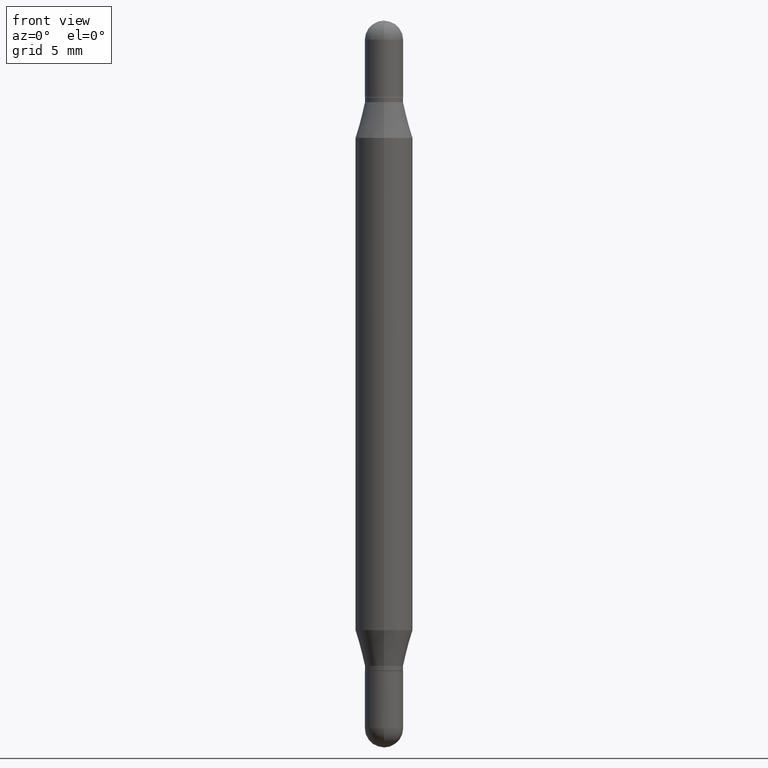
[diagram: clean part render]
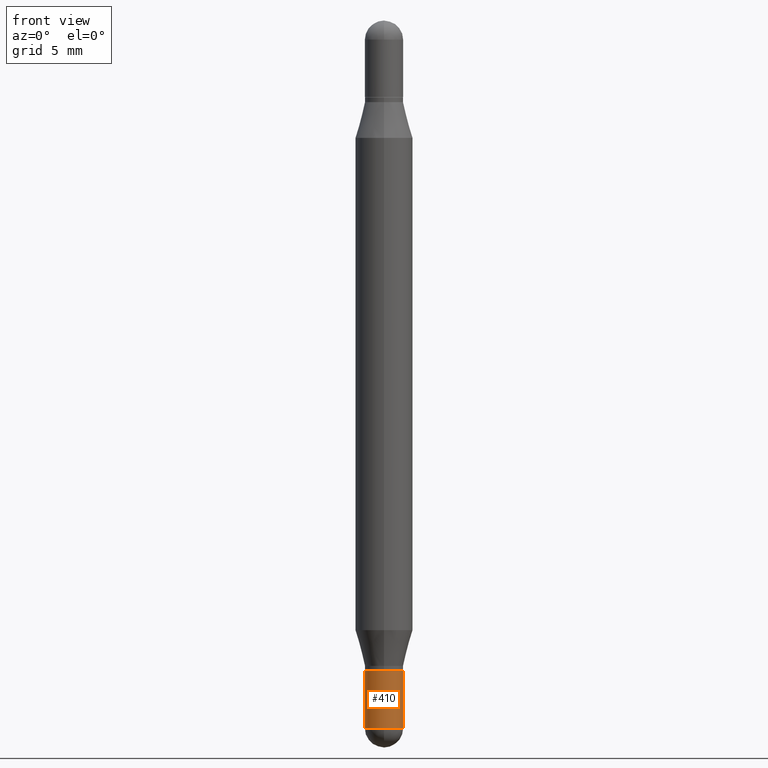
[diagram: same view with one face highlighted and labeled with its STEP entity id]
A machine part, front view. The second image highlights one B-rep face of the part: STEP entity #410.
In plain terms, the highlighted cylindrical surface (edge-blend (fillet) strip) has radius 0.9995 mm, axis along (-0, 0, 1).
Its self-contained STEP definition (entity closure, byte-faithful):
#10 = EDGE_CURVE ( 'NONE', #487, #551, #977, .T. ) ;
#14 = LINE ( 'NONE', #186, #481 ) ;
#155 = ORIENTED_EDGE ( 'NONE', *, *, #825, .T. ) ;
#186 = CARTESIAN_POINT ( 'NONE',  ( -0.03935000000000000303, 2.795985665215994447E-16, -1.935600958015305291E-30 ) ) ;
#268 = ORIENTED_EDGE ( 'NONE', *, *, #10, .F. ) ;
#279 = CYLINDRICAL_SURFACE ( 'NONE', #978, 0.03935000000000000303 ) ;
#299 = EDGE_LOOP ( 'NONE', ( #526, #787, #155, #522, #268 ) ) ;
#312 = CARTESIAN_POINT ( 'NONE',  ( 3.273504543959423913E-29, -4.673696920175434737E-15, -1.338600000000000012 ) ) ;
#320 = CARTESIAN_POINT ( 'NONE',  ( 0.03935000000000000303, -5.154735761634549569E-15, -1.456749999999999989 ) ) ;
#337 = CIRCLE ( 'NONE', #443, 0.03935000000000000303 ) ;
#341 = VERTEX_POINT ( 'NONE', #688 ) ;
#379 = AXIS2_PLACEMENT_3D ( 'NONE', #504, #961, #860 ) ;
#400 = CARTESIAN_POINT ( 'NONE',  ( 0.03935000000000000303, -2.747795813669546211E-16, 1.918775561275701074E-30 ) ) ;
#410 = ADVANCED_FACE ( 'NONE', ( #1055 ), #279, .T. ) ;
#443 = AXIS2_PLACEMENT_3D ( 'NONE', #1069, #801, #531 ) ;
#481 = VECTOR ( 'NONE', #521, 39.37007874015748143 ) ;
#487 = VERTEX_POINT ( 'NONE', #1007 ) ;
#504 = CARTESIAN_POINT ( 'NONE',  ( 3.562436683410197746E-29, -5.086215440359752990E-15, -1.456749999999999989 ) ) ;
#515 = EDGE_CURVE ( 'NONE', #679, #551, #939, .T. ) ;
#521 = DIRECTION ( 'NONE',  ( -2.445468806185136877E-29, 3.491481338843145188E-15, 1.000000000000000000 ) ) ;
#522 = ORIENTED_EDGE ( 'NONE', *, *, #515, .T. ) ;
#526 = ORIENTED_EDGE ( 'NONE', *, *, #872, .F. ) ;
#529 = DIRECTION ( 'NONE',  ( -2.445468806185136597E-29, 3.491481338843145583E-15, 1.000000000000000000 ) ) ;
#531 = DIRECTION ( 'NONE',  ( 1.000000000000000000, -6.982962677686269077E-15, 0.000000000000000000 ) ) ;
#551 = VERTEX_POINT ( 'NONE', #590 ) ;
#552 = DIRECTION ( 'NONE',  ( 1.000000000000000000, -6.982962677686269077E-15, 0.000000000000000000 ) ) ;
#590 = CARTESIAN_POINT ( 'NONE',  ( 0.03935000000000000303, -4.948476501542388865E-15, -1.338600000000000012 ) ) ;
#651 = DIRECTION ( 'NONE',  ( -2.445468806185136597E-29, 3.491481338843145583E-15, 1.000000000000000000 ) ) ;
#679 = VERTEX_POINT ( 'NONE', #320 ) ;
#688 = CARTESIAN_POINT ( 'NONE',  ( -2.747795813669189251E-16, -0.03935000000000508230, -1.456749999999999767 ) ) ;
#787 = ORIENTED_EDGE ( 'NONE', *, *, #1024, .T. ) ;
#801 = DIRECTION ( 'NONE',  ( -2.445468806185136597E-29, 3.491481338843145583E-15, 1.000000000000000000 ) ) ;
#825 = EDGE_CURVE ( 'NONE', #341, #679, #1103, .T. ) ;
#860 = DIRECTION ( 'NONE',  ( 1.000000000000000000, -6.982962677686269077E-15, 0.000000000000000000 ) ) ;
#872 = EDGE_CURVE ( 'NONE', #1101, #487, #14, .T. ) ;
#891 = DIRECTION ( 'NONE',  ( 1.000000000000000000, -6.982962677686266711E-15, 4.876176775795936353E-29 ) ) ;
#896 = CARTESIAN_POINT ( 'NONE',  ( 0.000000000000000000, 0.000000000000000000, 0.000000000000000000 ) ) ;
#903 = AXIS2_PLACEMENT_3D ( 'NONE', #312, #651, #552 ) ;
#924 = VECTOR ( 'NONE', #1108, 39.37007874015748143 ) ;
#939 = LINE ( 'NONE', #400, #924 ) ;
#961 = DIRECTION ( 'NONE',  ( -2.445468806185136597E-29, 3.491481338843145583E-15, 1.000000000000000000 ) ) ;
#977 = CIRCLE ( 'NONE', #903, 0.03935000000000000303 ) ;
#978 = AXIS2_PLACEMENT_3D ( 'NONE', #896, #529, #891 ) ;
#1007 = CARTESIAN_POINT ( 'NONE',  ( -0.03935000000000000303, -4.600357613745994468E-15, -1.338600000000000012 ) ) ;
#1024 = EDGE_CURVE ( 'NONE', #1101, #341, #337, .T. ) ;
#1031 = CARTESIAN_POINT ( 'NONE',  ( -0.03935000000000000303, -4.600357613745995257E-15, -1.456749999999999989 ) ) ;
#1055 = FACE_OUTER_BOUND ( 'NONE', #299, .T. ) ;
#1069 = CARTESIAN_POINT ( 'NONE',  ( 3.562436683410197746E-29, -5.086215440359752990E-15, -1.456749999999999989 ) ) ;
#1101 = VERTEX_POINT ( 'NONE', #1031 ) ;
#1103 = CIRCLE ( 'NONE', #379, 0.03935000000000000303 ) ;
#1108 = DIRECTION ( 'NONE',  ( -2.445468806185136877E-29, 3.491481338843145188E-15, 1.000000000000000000 ) ) ;